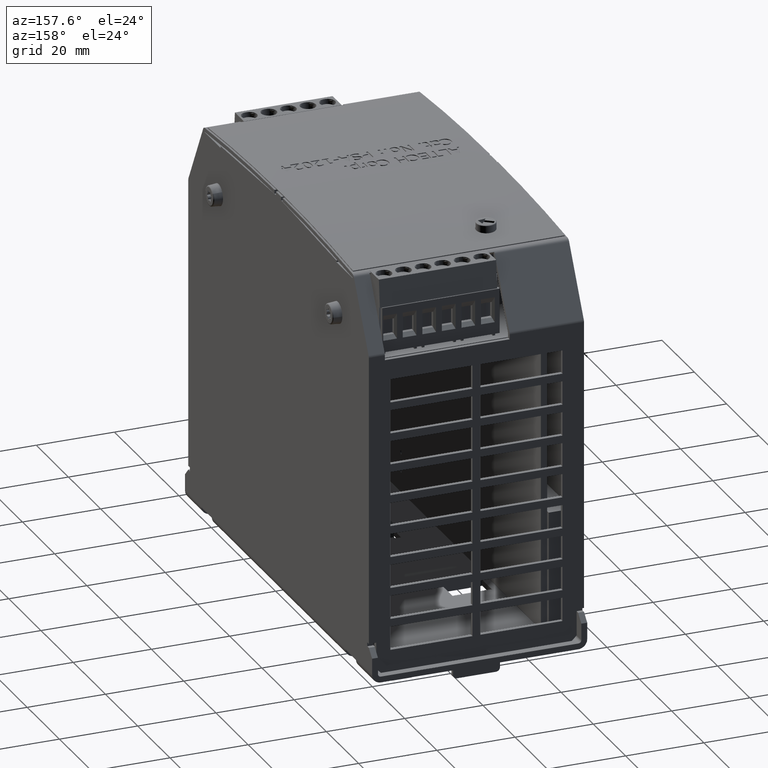
[diagram: clean part render]
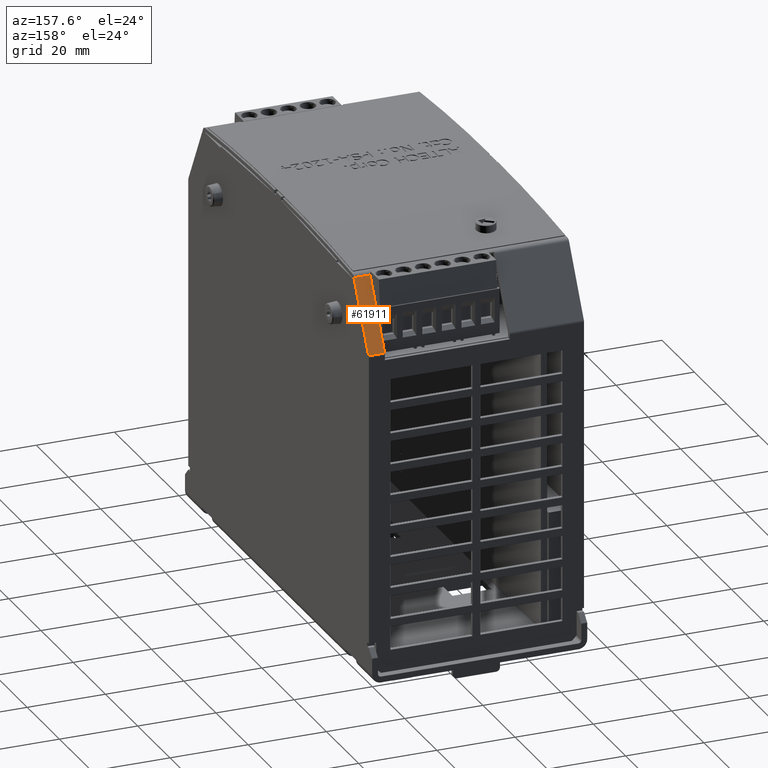
[diagram: same view with one face highlighted and labeled with its STEP entity id]
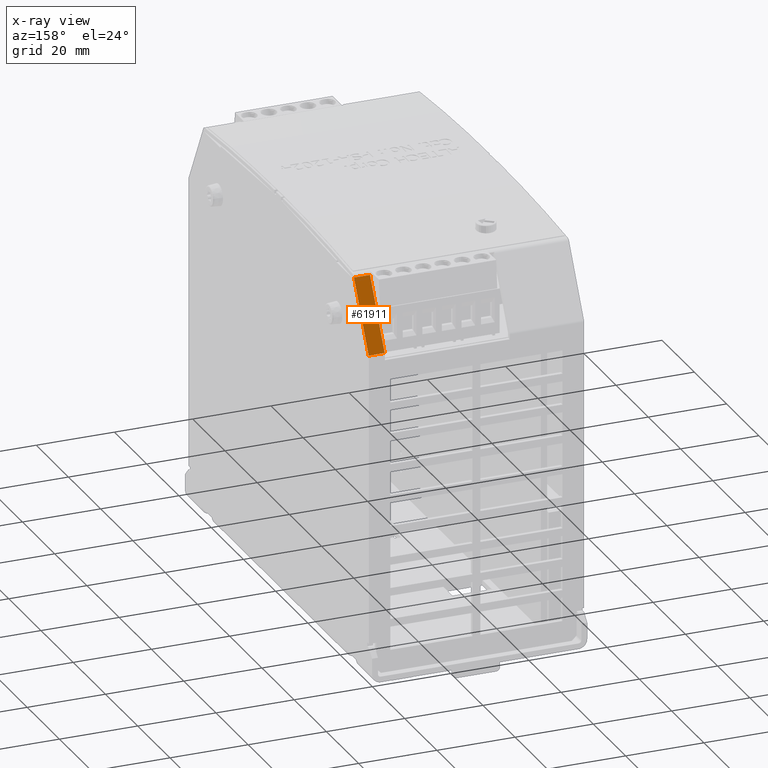
[diagram: x-ray of the same camera — body ghosted, the highlighted face saturated]
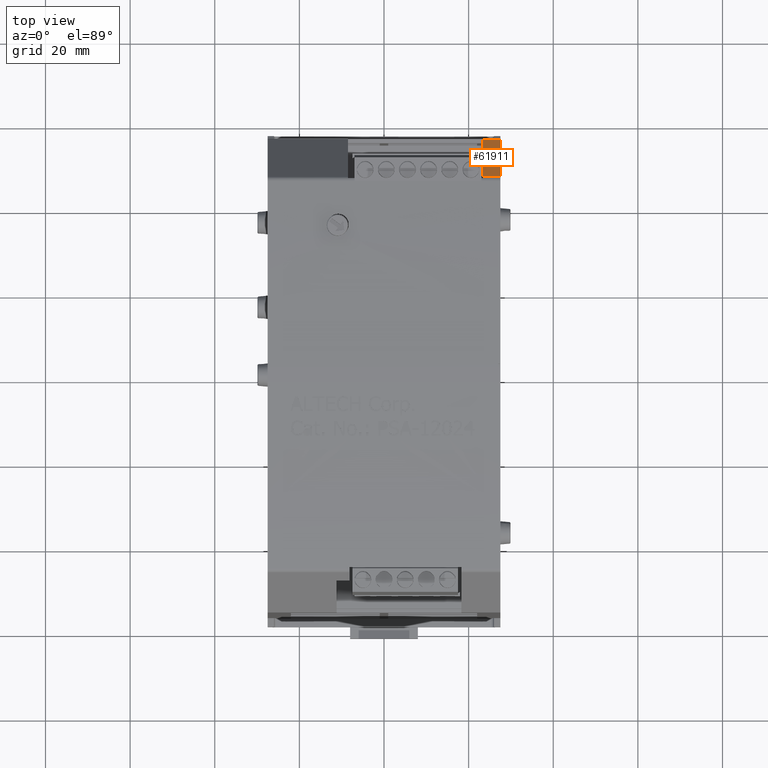
[diagram: same view with one face highlighted and labeled with its STEP entity id]
A machine part, auxiliary view. The second image highlights one B-rep face of the part: STEP entity #61911.
The next image is the same camera in x-ray: the body ghosted, the highlighted face saturated — about 0% of this face is hidden behind the body in this view.
A second angle (top view) of the same face is appended — the face is thin or edge-on in the first view.
In plain terms, the highlighted planar face has unit normal (-0, 0.8757, 0.4829).
Its self-contained STEP definition (entity closure, byte-faithful):
#58033=CARTESIAN_POINT('',(1.082677165354315,1.841561223489167,3.956021143397083));
#58034=VERTEX_POINT('',#58033);
#58042=CARTESIAN_POINT('',(0.921259842519673,1.841561223489168,3.956021143397082));
#58043=VERTEX_POINT('',#58042);
#58044=CARTESIAN_POINT('',(0.921259842519673,1.841561223489168,3.956021143397082));
#58045=DIRECTION('',(1.0,0.0,0.0));
#58046=VECTOR('',#58045,0.161417322834642);
#58047=LINE('',#58044,#58046);
#58048=EDGE_CURVE('',#58043,#58034,#58047,.T.);
#61325=CARTESIAN_POINT('',(0.921259842519673,2.199339393082314,3.307302484245016));
#61326=VERTEX_POINT('',#61325);
#61327=CARTESIAN_POINT('',(0.921259842519673,2.199339393082314,3.307302484245016));
#61328=DIRECTION('',(0.0,-0.482937042258637,0.875655076622342));
#61329=VECTOR('',#61328,0.740838118194169);
#61330=LINE('',#61327,#61329);
#61331=EDGE_CURVE('',#61326,#58043,#61330,.T.);
#61888=CARTESIAN_POINT('',(1.082677165354314,-0.282795932037577,7.80787752429525));
#61889=DIRECTION('',(-1.851262E-017,0.875655076622345,0.482937042258632));
#61890=DIRECTION('',(-1.0,0.0,0.0));
#61891=AXIS2_PLACEMENT_3D('',#61888,#61889,#61890);
#61892=PLANE('',#61891);
#61893=ORIENTED_EDGE('',*,*,#61331,.T.);
#61894=ORIENTED_EDGE('',*,*,#58048,.T.);
#61895=CARTESIAN_POINT('',(1.082677165354315,2.199339393082315,3.307302484245017));
#61896=VERTEX_POINT('',#61895);
#61897=CARTESIAN_POINT('',(1.082677165354315,1.841561223489167,3.956021143397083));
#61898=DIRECTION('',(0.0,0.482937042258638,-0.875655076622341));
#61899=VECTOR('',#61898,0.74083811819417);
#61900=LINE('',#61897,#61899);
#61901=EDGE_CURVE('',#58034,#61896,#61900,.T.);
#61902=ORIENTED_EDGE('',*,*,#61901,.T.);
#61903=CARTESIAN_POINT('',(0.921259842519673,2.199339393082314,3.307302484245016));
#61904=DIRECTION('',(1.0,0.0,0.0));
#61905=VECTOR('',#61904,0.161417322834642);
#61906=LINE('',#61903,#61905);
#61907=EDGE_CURVE('',#61326,#61896,#61906,.T.);
#61908=ORIENTED_EDGE('',*,*,#61907,.F.);
#61909=EDGE_LOOP('',(#61893,#61894,#61902,#61908));
#61910=FACE_OUTER_BOUND('',#61909,.T.);
#61911=ADVANCED_FACE('',(#61910),#61892,.T.);